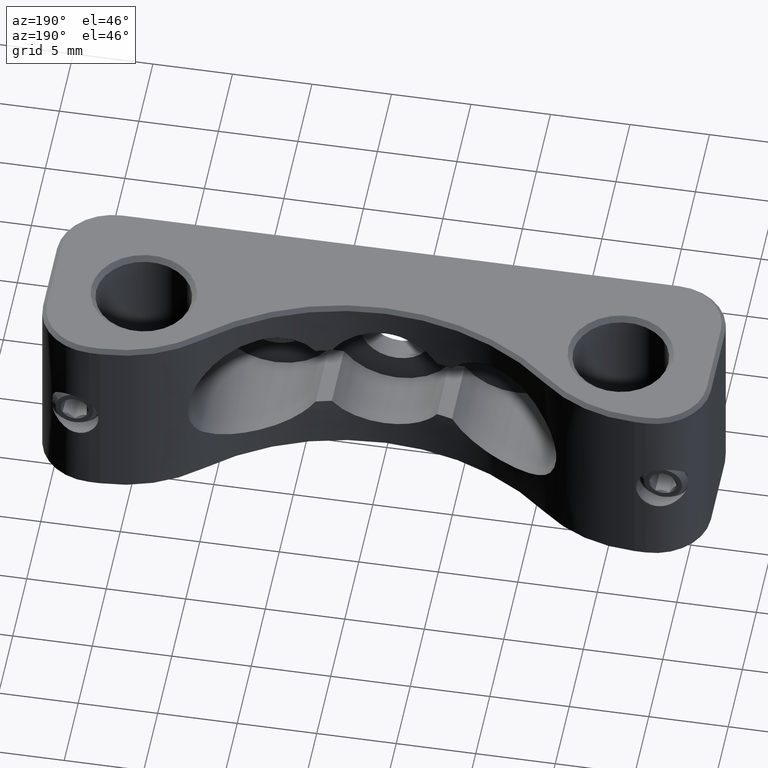
[diagram: clean part render]
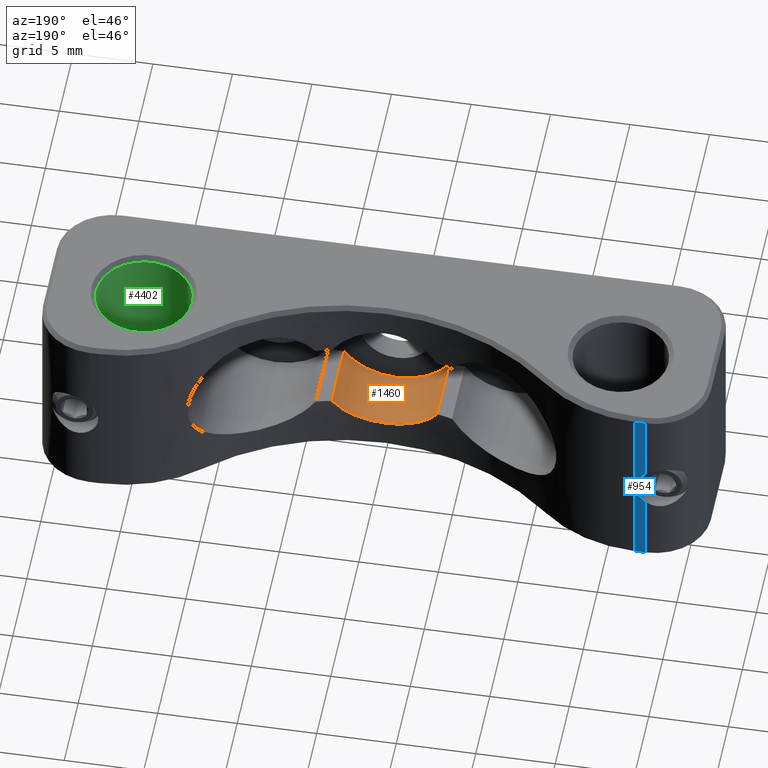
[diagram: same view with three faces highlighted in distinct colors, each labeled with its STEP entity id]
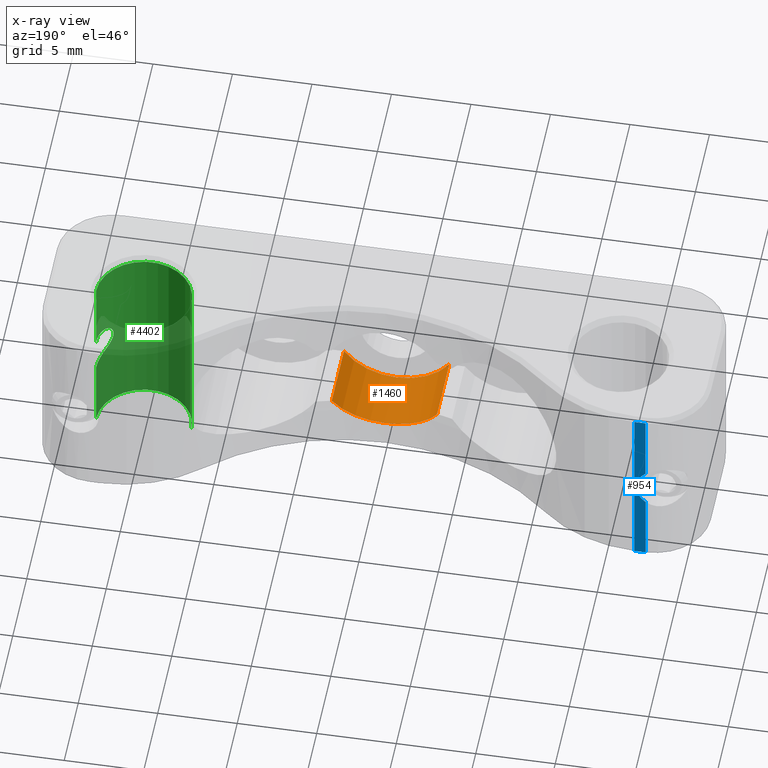
[diagram: x-ray of the same camera — body ghosted, the three highlighted faces saturated]
A machine part, auxiliary view with three faces highlighted in distinct colors.
The next image is the same camera in x-ray (body ghosted, the three faces saturated) — at least one of them is partly hidden behind the body in this view.
Their STEP definitions:

[orange] entity #1460 — the highlighted cylindrical surface (partial cylindrical patch) has radius 4 mm, axis along (-0, 1, -0).
#57 = EDGE_LOOP ( 'NONE', ( #4321, #1933, #414, #5832 ) ) ;
#252 = CARTESIAN_POINT ( 'NONE',  ( -2.910447189116573519, 5.765018936353054180, -2.763145949620597008 ) ) ;
#334 = DIRECTION ( 'NONE',  ( 0.000000000000000000, -1.000000000000000000, 0.000000000000000000 ) ) ;
#335 = CARTESIAN_POINT ( 'NONE',  ( -2.158893561541534556, 5.643713352791571047, -3.382838641260951018 ) ) ;
#414 = ORIENTED_EDGE ( 'NONE', *, *, #2826, .T. ) ;
#559 = DIRECTION ( 'NONE',  ( 0.000000000000000000, 0.000000000000000000, 1.000000000000000000 ) ) ;
#651 = CARTESIAN_POINT ( 'NONE',  ( 2.911167384903151856, 5.765184784847847688, -2.762092231162101896 ) ) ;
#720 = CARTESIAN_POINT ( 'NONE',  ( 0.6521078169099280286, 5.510154882719896285, -3.959925051812315466 ) ) ;
#1101 = CARTESIAN_POINT ( 'NONE',  ( 3.123465462557950989, 5.806714034291807991, -2.520048420762400099 ) ) ;
#1112 = VECTOR ( 'NONE', #334, 1000.000000000000000 ) ;
#1274 = CARTESIAN_POINT ( 'NONE',  ( 3.307189138830732844, 1.499999999999994449, -2.250000000000000444 ) ) ;
#1460 = ADVANCED_FACE ( 'NONE', ( #5653 ), #3315, .F. ) ;
#1471 = DIRECTION ( 'NONE',  ( -0.000000000000000000, 1.000000000000000000, -0.000000000000000000 ) ) ;
#1542 = EDGE_CURVE ( 'NONE', #3750, #2228, #4659, .T. ) ;
#1574 = CARTESIAN_POINT ( 'NONE',  ( 2.430948285492618322, 5.683875448417586185, -3.192888890899648224 ) ) ;
#1644 = CARTESIAN_POINT ( 'NONE',  ( -3.307189138830732844, 5.845527795546725081, -2.250000000000000444 ) ) ;
#1725 = DIRECTION ( 'NONE',  ( 0.000000000000000000, 0.000000000000000000, 1.000000000000000000 ) ) ;
#1933 = ORIENTED_EDGE ( 'NONE', *, *, #4746, .T. ) ;
#1996 = CARTESIAN_POINT ( 'NONE',  ( 0.000000000000000000, 1.499999999999994449, 0.000000000000000000 ) ) ;
#2204 = CARTESIAN_POINT ( 'NONE',  ( 3.307189138830732844, 5.845527795546725081, -2.250000000000000000 ) ) ;
#2228 = VERTEX_POINT ( 'NONE', #5286 ) ;
#2432 = AXIS2_PLACEMENT_3D ( 'NONE', #1996, #1471, #559 ) ;
#2571 = CARTESIAN_POINT ( 'NONE',  ( 3.307189138830732844, 11.99999999999999467, -2.250000000000000444 ) ) ;
#2580 = CARTESIAN_POINT ( 'NONE',  ( -0.8069538135893257191, 5.519585579031109468, -3.921107051355978701 ) ) ;
#2606 = CARTESIAN_POINT ( 'NONE',  ( 1.283714150607918825, 5.550855430303145432, -3.791888344148511170 ) ) ;
#2624 = EDGE_CURVE ( 'NONE', #3750, #4146, #3188, .T. ) ;
#2677 = CARTESIAN_POINT ( 'NONE',  ( -3.307189138830732844, 11.99999999999999467, -2.250000000000000444 ) ) ;
#2754 = DIRECTION ( 'NONE',  ( -0.000000000000000000, 1.000000000000000000, -0.000000000000000000 ) ) ;
#2826 = EDGE_CURVE ( 'NONE', #3398, #2228, #3531, .T. ) ;
#3024 = CARTESIAN_POINT ( 'NONE',  ( -0.3245246870433043385, 5.502475224080157545, -3.990133566193118320 ) ) ;
#3078 = CARTESIAN_POINT ( 'NONE',  ( 1.126505762777695541, 5.538919753465958884, -3.841555351890700187 ) ) ;
#3188 = LINE ( 'NONE', #2571, #4683 ) ;
#3315 = CYLINDRICAL_SURFACE ( 'NONE', #5683, 3.999999999999995559 ) ;
#3379 = CARTESIAN_POINT ( 'NONE',  ( -3.307189138830732844, 5.845527795546725081, -2.250000000000000444 ) ) ;
#3384 = CARTESIAN_POINT ( 'NONE',  ( 3.307189138830732844, 5.845527795546725081, -2.250000000000000000 ) ) ;
#3398 = VERTEX_POINT ( 'NONE', #3379 ) ;
#3481 = CARTESIAN_POINT ( 'NONE',  ( -1.278721222522216872, 5.548067511182909861, -3.803931110957591955 ) ) ;
#3510 = CARTESIAN_POINT ( 'NONE',  ( 0.3305967979467073770, 5.500077513809985774, -3.999689944631098726 ) ) ;
#3531 = LINE ( 'NONE', #2677, #1112 ) ;
#3549 = CARTESIAN_POINT ( 'NONE',  ( -2.426075337771895768, 5.683094791666117196, -3.196847953061932035 ) ) ;
#3750 = VERTEX_POINT ( 'NONE', #1274 ) ;
#3945 = CARTESIAN_POINT ( 'NONE',  ( -0.1596389128739111596, 5.499961910382150876, -4.000152358535282282 ) ) ;
#3986 = CARTESIAN_POINT ( 'NONE',  ( 1.733582368969903920, 5.593546672219047444, -3.608419898971310324 ) ) ;
#4146 = VERTEX_POINT ( 'NONE', #2204 ) ;
#4197 = B_SPLINE_CURVE_WITH_KNOTS ( 'NONE', 3,
 ( #3384, #1101, #651, #1574, #4908, #3986, #4418, #2606, #3078, #720, #3510, #3945, #3024, #4871, #2580, #3481, #4438, #335, #3549, #252, #4392, #1644 ),
 .UNSPECIFIED., .F., .F.,
 ( 4, 2, 2, 2, 2, 2, 2, 2, 2, 2, 4 ),
 ( 0.000000000000000000, 0.0009728134931335414865, 0.001945626986267082973, 0.002432033732833852741, 0.002918440479400622508, 0.003891253972534162477, 0.004377660719100932678, 0.004864067465667702012, 0.005836880958801242414, 0.006809694451934783684, 0.007782507945068323219 ),
 .UNSPECIFIED. ) ;
#4321 = ORIENTED_EDGE ( 'NONE', *, *, #2624, .T. ) ;
#4392 = CARTESIAN_POINT ( 'NONE',  ( -3.123462541295244588, 5.806713417141116551, -2.520052714614976708 ) ) ;
#4418 = CARTESIAN_POINT ( 'NONE',  ( 1.586688622978466245, 5.578142264821218888, -3.675426294822281559 ) ) ;
#4438 = CARTESIAN_POINT ( 'NONE',  ( -1.587878293710402122, 5.576392049134428319, -3.685520479828740203 ) ) ;
#4659 = CIRCLE ( 'NONE', #2432, 3.999999999999998224 ) ;
#4683 = VECTOR ( 'NONE', #4948, 1000.000000000000000 ) ;
#4746 = EDGE_CURVE ( 'NONE', #4146, #3398, #4197, .T. ) ;
#4871 = CARTESIAN_POINT ( 'NONE',  ( -0.6475796577524052244, 5.512293603661123420, -3.950585113046777952 ) ) ;
#4908 = CARTESIAN_POINT ( 'NONE',  ( 2.160833100113080718, 5.643989735467390467, -3.381539339211876882 ) ) ;
#4948 = DIRECTION ( 'NONE',  ( -0.000000000000000000, 1.000000000000000000, -0.000000000000000000 ) ) ;
#5286 = CARTESIAN_POINT ( 'NONE',  ( -3.307189138830735065, 1.499999999999994449, -2.250000000000001776 ) ) ;
#5373 = CARTESIAN_POINT ( 'NONE',  ( 0.000000000000000000, 11.99999999999999467, 0.000000000000000000 ) ) ;
#5653 = FACE_OUTER_BOUND ( 'NONE', #57, .T. ) ;
#5683 = AXIS2_PLACEMENT_3D ( 'NONE', #5373, #2754, #1725 ) ;
#5832 = ORIENTED_EDGE ( 'NONE', *, *, #1542, .F. ) ;

[blue] entity #954 — the highlighted planar face has unit normal (0, -1, 0).
#119 = DIRECTION ( 'NONE',  ( 0.000000000000000000, 0.000000000000000000, 1.000000000000000000 ) ) ;
#162 = VECTOR ( 'NONE', #570, 1000.000000000000000 ) ;
#165 = ORIENTED_EDGE ( 'NONE', *, *, #5024, .T. ) ;
#214 = ORIENTED_EDGE ( 'NONE', *, *, #2956, .T. ) ;
#283 = DIRECTION ( 'NONE',  ( -0.000000000000000000, -0.000000000000000000, 1.000000000000000000 ) ) ;
#299 = ORIENTED_EDGE ( 'NONE', *, *, #1911, .T. ) ;
#570 = DIRECTION ( 'NONE',  ( 0.000000000000000000, -0.000000000000000000, -1.000000000000000000 ) ) ;
#645 = VERTEX_POINT ( 'NONE', #4256 ) ;
#729 = CARTESIAN_POINT ( 'NONE',  ( -17.50000000000000355, 11.99999999999999467, 6.000000000000000000 ) ) ;
#954 = ADVANCED_FACE ( 'NONE', ( #3005 ), #4578, .F. ) ;
#1066 = DIRECTION ( 'NONE',  ( 0.000000000000000000, -0.000000000000000000, -1.000000000000000000 ) ) ;
#1428 = VECTOR ( 'NONE', #1739, 1000.000000000000000 ) ;
#1438 = VECTOR ( 'NONE', #5899, 1000.000000000000000 ) ;
#1617 = VERTEX_POINT ( 'NONE', #2462 ) ;
#1632 = VERTEX_POINT ( 'NONE', #2537 ) ;
#1704 = VERTEX_POINT ( 'NONE', #2161 ) ;
#1715 = CARTESIAN_POINT ( 'NONE',  ( -17.49999999999999289, 11.99999999999999467, -5.749999999999996447 ) ) ;
#1739 = DIRECTION ( 'NONE',  ( -1.000000000000000000, 0.000000000000000000, 0.000000000000000000 ) ) ;
#1792 = CARTESIAN_POINT ( 'NONE',  ( -17.50000000000000000, 11.99999999999999467, -1.248999599679681882 ) ) ;
#1796 = EDGE_CURVE ( 'NONE', #1617, #645, #4508, .T. ) ;
#1807 = CARTESIAN_POINT ( 'NONE',  ( -16.81517172080024736, 11.99999999999999467, -5.749999999999996447 ) ) ;
#1911 = EDGE_CURVE ( 'NONE', #1632, #5849, #3956, .T. ) ;
#2115 = EDGE_CURVE ( 'NONE', #2375, #1632, #3878, .T. ) ;
#2161 = CARTESIAN_POINT ( 'NONE',  ( -17.50000000000000000, 11.99999999999999467, 1.248999599679686323 ) ) ;
#2375 = VERTEX_POINT ( 'NONE', #1807 ) ;
#2378 = VECTOR ( 'NONE', #5328, 1000.000000000000000 ) ;
#2462 = CARTESIAN_POINT ( 'NONE',  ( -17.50000000000000355, 11.99999999999999467, 5.750000000000008882 ) ) ;
#2537 = CARTESIAN_POINT ( 'NONE',  ( -17.50000000000000355, 11.99999999999999467, -5.749999999999996447 ) ) ;
#2956 = EDGE_CURVE ( 'NONE', #1704, #1617, #4810, .T. ) ;
#3005 = FACE_OUTER_BOUND ( 'NONE', #5468, .T. ) ;
#3270 = CARTESIAN_POINT ( 'NONE',  ( -16.81517172080024736, 11.99999999999999467, 6.000000000000000000 ) ) ;
#3365 = CARTESIAN_POINT ( 'NONE',  ( -18.50000000000000000, 11.99999999999999467, 2.265596578422603396E-15 ) ) ;
#3506 = AXIS2_PLACEMENT_3D ( 'NONE', #5609, #3879, #1066 ) ;
#3867 = DIRECTION ( 'NONE',  ( 0.000000000000000000, 1.000000000000000000, 0.000000000000000000 ) ) ;
#3878 = LINE ( 'NONE', #1715, #1428 ) ;
#3879 = DIRECTION ( 'NONE',  ( 0.000000000000000000, -1.000000000000000000, 0.000000000000000000 ) ) ;
#3928 = AXIS2_PLACEMENT_3D ( 'NONE', #3365, #3867, #119 ) ;
#3956 = LINE ( 'NONE', #729, #4170 ) ;
#4170 = VECTOR ( 'NONE', #283, 1000.000000000000000 ) ;
#4256 = CARTESIAN_POINT ( 'NONE',  ( -16.81517172080024736, 11.99999999999999467, 5.750000000000008882 ) ) ;
#4508 = LINE ( 'NONE', #5644, #1438 ) ;
#4578 = PLANE ( 'NONE',  #3506 ) ;
#4689 = ORIENTED_EDGE ( 'NONE', *, *, #1796, .T. ) ;
#4735 = LINE ( 'NONE', #3270, #162 ) ;
#4810 = LINE ( 'NONE', #4920, #2378 ) ;
#4882 = EDGE_CURVE ( 'NONE', #1704, #5849, #5255, .T. ) ;
#4910 = ORIENTED_EDGE ( 'NONE', *, *, #4882, .F. ) ;
#4920 = CARTESIAN_POINT ( 'NONE',  ( -17.50000000000000355, 11.99999999999999467, 6.000000000000000000 ) ) ;
#5024 = EDGE_CURVE ( 'NONE', #645, #2375, #4735, .T. ) ;
#5255 = CIRCLE ( 'NONE', #3928, 1.600000000000001865 ) ;
#5328 = DIRECTION ( 'NONE',  ( -0.000000000000000000, -0.000000000000000000, 1.000000000000000000 ) ) ;
#5468 = EDGE_LOOP ( 'NONE', ( #165, #5926, #299, #4910, #214, #4689 ) ) ;
#5609 = CARTESIAN_POINT ( 'NONE',  ( 21.00000000000000000, 11.99999999999999467, 6.000000000000000000 ) ) ;
#5644 = CARTESIAN_POINT ( 'NONE',  ( 21.00000000000000000, 11.99999999999999467, 5.750000000000008882 ) ) ;
#5849 = VERTEX_POINT ( 'NONE', #1792 ) ;
#5899 = DIRECTION ( 'NONE',  ( 1.000000000000000000, 0.000000000000000000, 0.000000000000000000 ) ) ;
#5926 = ORIENTED_EDGE ( 'NONE', *, *, #2115, .T. ) ;

[green] entity #4402 — the highlighted cylindrical surface (partial cylindrical patch) has radius 3 mm, axis along (-0, -0, 1).
#43 = CARTESIAN_POINT ( 'NONE',  ( 15.00000000000000000, 6.599999999999994316, -5.700000000000000178 ) ) ;
#86 = VECTOR ( 'NONE', #353, 1000.000000000000000 ) ;
#254 = ORIENTED_EDGE ( 'NONE', *, *, #5273, .T. ) ;
#353 = DIRECTION ( 'NONE',  ( -0.000000000000000000, -0.000000000000000000, 1.000000000000000000 ) ) ;
#470 = DIRECTION ( 'NONE',  ( -0.000000000000000000, -0.000000000000000000, 1.000000000000000000 ) ) ;
#685 = ORIENTED_EDGE ( 'NONE', *, *, #749, .T. ) ;
#737 = CARTESIAN_POINT ( 'NONE',  ( 18.00000000000000355, 6.599999999999995204, -1.145643923738955960 ) ) ;
#749 = EDGE_CURVE ( 'NONE', #854, #1716, #2531, .T. ) ;
#852 = CARTESIAN_POINT ( 'NONE',  ( 17.66150042357772776, 5.211524635635997882, 0.9289607148690010030 ) ) ;
#854 = VERTEX_POINT ( 'NONE', #1982 ) ;
#1008 = EDGE_LOOP ( 'NONE', ( #685, #254, #2005, #3720, #1583, #2132 ) ) ;
#1196 = VERTEX_POINT ( 'NONE', #5148 ) ;
#1215 = CARTESIAN_POINT ( 'NONE',  ( 17.87460341636440475, 5.712812970680042568, 1.083768781810575232 ) ) ;
#1246 = DIRECTION ( 'NONE',  ( -0.000000000000000000, -0.000000000000000000, 1.000000000000000000 ) ) ;
#1297 = CARTESIAN_POINT ( 'NONE',  ( 17.24980385955308293, 4.615464113904093502, -0.1108653764750448245 ) ) ;
#1313 = CARTESIAN_POINT ( 'NONE',  ( 18.00000000000000355, 6.599999999999995204, -1.145643923738955960 ) ) ;
#1583 = ORIENTED_EDGE ( 'NONE', *, *, #2637, .T. ) ;
#1716 = VERTEX_POINT ( 'NONE', #5788 ) ;
#1724 = EDGE_CURVE ( 'NONE', #854, #4216, #4249, .T. ) ;
#1738 = CARTESIAN_POINT ( 'NONE',  ( 17.25019997677064154, 4.615913269485464987, 0.1152450572701382014 ) ) ;
#1750 = CARTESIAN_POINT ( 'NONE',  ( 17.79973059604520813, 5.501227067056623454, 1.042267220824784957 ) ) ;
#1811 = DIRECTION ( 'NONE',  ( -1.000000000000000000, 0.000000000000000000, 0.000000000000000000 ) ) ;
#1844 = CIRCLE ( 'NONE', #4560, 3.000000000000000888 ) ;
#1909 = VERTEX_POINT ( 'NONE', #2105 ) ;
#1982 = CARTESIAN_POINT ( 'NONE',  ( 18.00000000000000355, 6.599999999999994316, -5.700000000000000178 ) ) ;
#2005 = ORIENTED_EDGE ( 'NONE', *, *, #4784, .T. ) ;
#2105 = CARTESIAN_POINT ( 'NONE',  ( 18.00000000000000355, 6.599999999999994316, 5.700000000000005507 ) ) ;
#2132 = ORIENTED_EDGE ( 'NONE', *, *, #1724, .F. ) ;
#2146 = CARTESIAN_POINT ( 'NONE',  ( 17.32289631463168789, 4.701020316939152899, -0.4343757557491312871 ) ) ;
#2160 = CARTESIAN_POINT ( 'NONE',  ( 18.00000000000000355, 6.599999999999994316, 1.145643923738984160 ) ) ;
#2213 = CARTESIAN_POINT ( 'NONE',  ( 17.26568490033656289, 4.633113359241490592, -0.2252146043956942401 ) ) ;
#2261 = DIRECTION ( 'NONE',  ( -1.000000000000000000, 0.000000000000000000, 0.000000000000000000 ) ) ;
#2335 = VECTOR ( 'NONE', #1246, 1000.000000000000000 ) ;
#2508 = VERTEX_POINT ( 'NONE', #2160 ) ;
#2525 = CARTESIAN_POINT ( 'NONE',  ( 18.00000000000000355, 6.599999999999994316, -6.000000000000000000 ) ) ;
#2531 = CIRCLE ( 'NONE', #3244, 3.000000000000000888 ) ;
#2637 = EDGE_CURVE ( 'NONE', #2508, #4216, #4323, .T. ) ;
#2981 = LINE ( 'NONE', #2525, #2335 ) ;
#3029 = CARTESIAN_POINT ( 'NONE',  ( 18.00000000000000711, 6.372673920215295773, -1.145643923738956182 ) ) ;
#3036 = CARTESIAN_POINT ( 'NONE',  ( 17.51001691426521489, 4.954018600359217928, 0.7670206668615054957 ) ) ;
#3074 = CARTESIAN_POINT ( 'NONE',  ( 17.50414104750601396, 4.940507758170165076, -0.7791272431139431021 ) ) ;
#3244 = AXIS2_PLACEMENT_3D ( 'NONE', #43, #3623, #1811 ) ;
#3264 = CARTESIAN_POINT ( 'NONE',  ( 15.00000000000000000, 6.599999999999994316, 5.700000000000005507 ) ) ;
#3269 = AXIS2_PLACEMENT_3D ( 'NONE', #5028, #470, #3718 ) ;
#3533 = CARTESIAN_POINT ( 'NONE',  ( 17.87417021065662581, 5.711752426730224208, -1.083512315468034837 ) ) ;
#3606 = CARTESIAN_POINT ( 'NONE',  ( 18.00000000000000355, 6.599999999999994316, 1.145643923738984160 ) ) ;
#3613 = CARTESIAN_POINT ( 'NONE',  ( 17.32378804373208325, 4.702111223953504116, 0.4365183337865161106 ) ) ;
#3623 = DIRECTION ( 'NONE',  ( -0.000000000000000000, -0.000000000000000000, -1.000000000000000000 ) ) ;
#3718 = DIRECTION ( 'NONE',  ( 1.000000000000000000, 0.000000000000000000, 0.000000000000000000 ) ) ;
#3720 = ORIENTED_EDGE ( 'NONE', *, *, #4125, .F. ) ;
#3975 = CARTESIAN_POINT ( 'NONE',  ( 18.00000000000000711, 6.373563186614519260, 1.145643923738960401 ) ) ;
#4071 = CYLINDRICAL_SURFACE ( 'NONE', #3269, 3.000000000000002665 ) ;
#4084 = CARTESIAN_POINT ( 'NONE',  ( 17.26658560558594147, 4.634150979605477616, 0.2295904036573115370 ) ) ;
#4125 = EDGE_CURVE ( 'NONE', #2508, #1909, #2981, .T. ) ;
#4216 = VERTEX_POINT ( 'NONE', #1313 ) ;
#4249 = LINE ( 'NONE', #5826, #86 ) ;
#4323 = B_SPLINE_CURVE_WITH_KNOTS ( 'NONE', 3,
 ( #3606, #3975, #4412, #1215, #1750, #852, #5760, #3036, #5846, #4474, #3613, #4084, #1738, #1297, #2213, #2146, #4432, #3074, #4556, #5741, #3533, #4892, #3029, #737 ),
 .UNSPECIFIED., .F., .F.,
 ( 4, 2, 2, 2, 2, 2, 2, 2, 2, 2, 2, 4 ),
 ( 0.005380759176983538651, 0.006053046435307278365, 0.006725333693631018080, 0.007061477322792888804, 0.007397620951954760396, 0.007733764581116631120, 0.008069908210278501845, 0.008406051839440372569, 0.008742195468602243294, 0.009414482726925986478, 0.01008676998524972619, 0.01075905724357346764 ),
 .UNSPECIFIED. ) ;
#4402 = ADVANCED_FACE ( 'NONE', ( #5450 ), #4071, .F. ) ;
#4412 = CARTESIAN_POINT ( 'NONE',  ( 17.97465997322914433, 6.150729847379333037, 1.135646738877306383 ) ) ;
#4432 = CARTESIAN_POINT ( 'NONE',  ( 17.36400416248978118, 4.751313022342605663, -0.5301717039955826660 ) ) ;
#4474 = CARTESIAN_POINT ( 'NONE',  ( 17.36530753841010366, 4.753007129099766637, 0.5327668179879205823 ) ) ;
#4532 = CARTESIAN_POINT ( 'NONE',  ( 11.99999999999999822, 6.599999999999994316, -6.000000000000000000 ) ) ;
#4556 = CARTESIAN_POINT ( 'NONE',  ( 17.61501151021237277, 5.114441639348635604, -0.8907091912444456971 ) ) ;
#4560 = AXIS2_PLACEMENT_3D ( 'NONE', #3264, #4632, #2261 ) ;
#4632 = DIRECTION ( 'NONE',  ( 0.000000000000000000, 0.000000000000000000, 1.000000000000000000 ) ) ;
#4784 = EDGE_CURVE ( 'NONE', #1196, #1909, #1844, .T. ) ;
#4892 = CARTESIAN_POINT ( 'NONE',  ( 17.97398328670919554, 6.146941988681410507, -1.135327389055339919 ) ) ;
#5028 = CARTESIAN_POINT ( 'NONE',  ( 15.00000000000000000, 6.599999999999994316, -6.000000000000000000 ) ) ;
#5148 = CARTESIAN_POINT ( 'NONE',  ( 11.99999999999999645, 6.599999999999994316, 5.700000000000005507 ) ) ;
#5273 = EDGE_CURVE ( 'NONE', #1716, #1196, #5288, .T. ) ;
#5288 = LINE ( 'NONE', #4532, #5934 ) ;
#5335 = DIRECTION ( 'NONE',  ( -0.000000000000000000, -0.000000000000000000, 1.000000000000000000 ) ) ;
#5450 = FACE_OUTER_BOUND ( 'NONE', #1008, .T. ) ;
#5741 = CARTESIAN_POINT ( 'NONE',  ( 17.79832670477783552, 5.497939886044508562, -1.041259850947871435 ) ) ;
#5760 = CARTESIAN_POINT ( 'NONE',  ( 17.61125896049234996, 5.119876248717939227, 0.8823415314539554410 ) ) ;
#5788 = CARTESIAN_POINT ( 'NONE',  ( 11.99999999999999822, 6.599999999999994316, -5.700000000000000178 ) ) ;
#5826 = CARTESIAN_POINT ( 'NONE',  ( 18.00000000000000355, 6.599999999999994316, -6.000000000000000000 ) ) ;
#5846 = CARTESIAN_POINT ( 'NONE',  ( 17.45793171150145184, 4.878188710104535808, 0.6967504193350871899 ) ) ;
#5934 = VECTOR ( 'NONE', #5335, 1000.000000000000000 ) ;